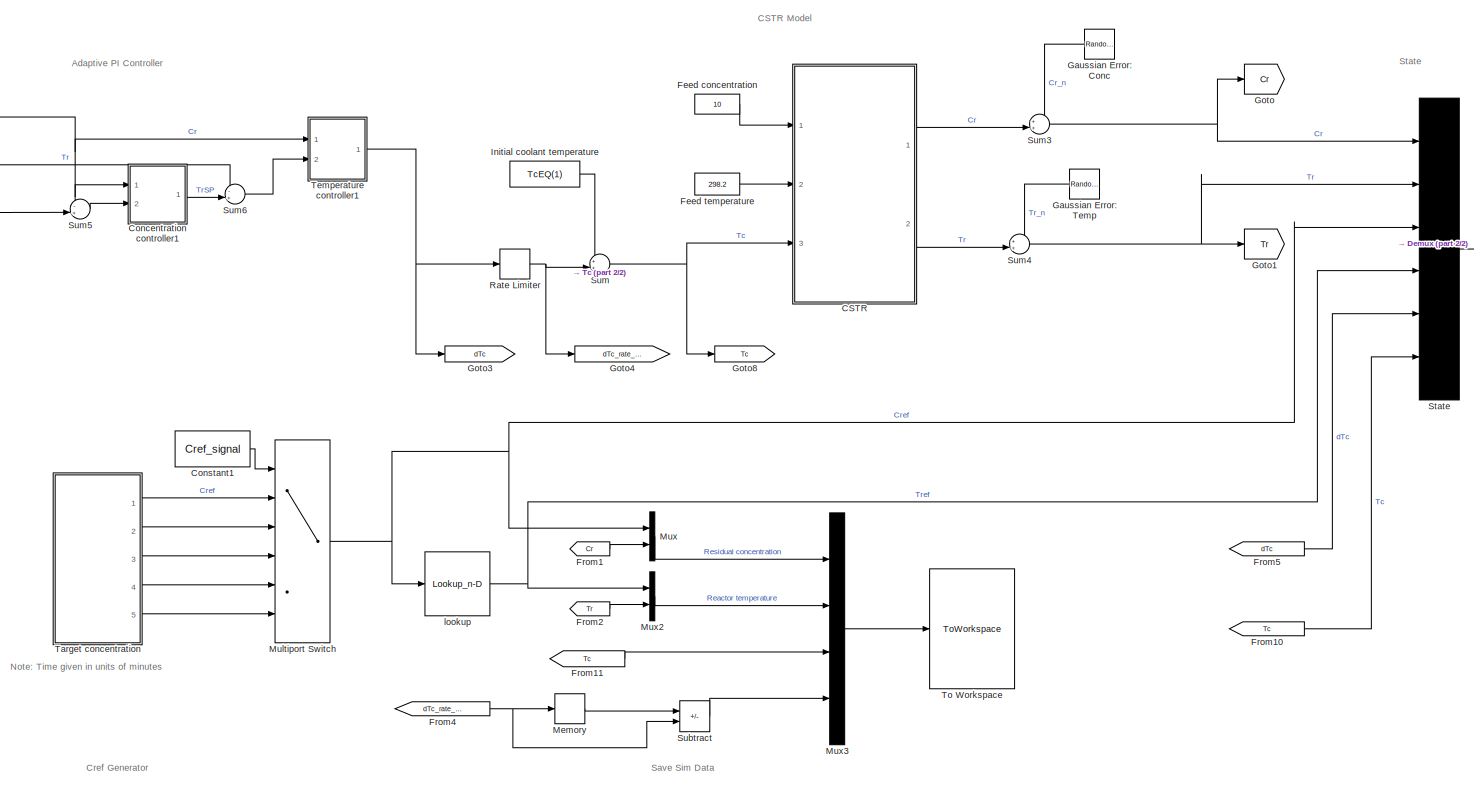
[diagram: root canvas - part 1/2, most of the canvas]
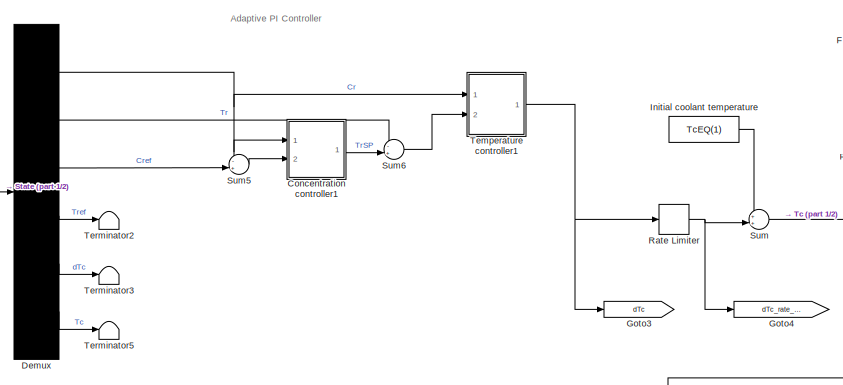
[diagram: root canvas - part 2/2, middle left region]
MODEL slx_334c2318e5c8
KIND model
CONFIG AbsTol = auto
CONFIG EnableMultiTasking = on
CONFIG FixedStep = Ts
CONFIG MaxStep = auto
CONFIG MinStep = auto
CONFIG PreLoadFcn = Ts = 0.5;\nload cstr_data.mat
CONFIG RelTol = 1e-3
CONFIG SampleTimeConstraint = Unconstrained
CONFIG SolverName = FixedStepAuto
CONFIG StartTime = 0
CONFIG StopTime = 45
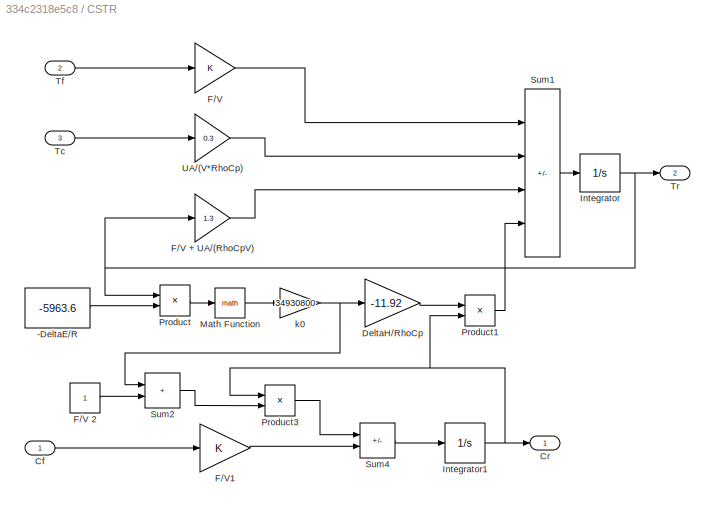
BLOCK [SubSystem] CSTR
  Ports = [3, 2]
  RequestExecContextInheritance = off
BLOCK [Constant] CSTR/-DeltaE//R
  SampleTime = 0
  Value = -5963.6
BLOCK [Inport] CSTR/Cf
BLOCK [Outport] CSTR/Cr
BLOCK [Gain] CSTR/DeltaH//RhoCp
  Gain = -11.92
  OutDataTypeStr = Inherit: Same as input
  ParamDataTypeStr = Inherit: Same as input
  SaturateOnIntegerOverflow = on
BLOCK [Gain] CSTR/F//V
  OutDataTypeStr = Inherit: Same as input
  ParamDataTypeStr = Inherit: Same as input
  SaturateOnIntegerOverflow = on
BLOCK [Gain] CSTR/F//V + UA//(RhoCpV)
  Gain = 1.3
  OutDataTypeStr = Inherit: Same as input
  ParamDataTypeStr = Inherit: Same as input
  SaturateOnIntegerOverflow = on
BLOCK [Constant] CSTR/F//V 2
  SampleTime = 0
BLOCK [Gain] CSTR/F//V1
  OutDataTypeStr = Inherit: Same as input
  ParamDataTypeStr = Inherit: Same as input
  SaturateOnIntegerOverflow = on
BLOCK [Integrator] CSTR/Integrator
  InitialCondition = TrEQ(1)
  LimitOutput = on
  LowerSaturationLimit = 0
  Ports = [1, 1]
BLOCK [Integrator] CSTR/Integrator1
  InitialCondition = CrEQ(1)
  LimitOutput = on
  LowerSaturationLimit = 0
  Ports = [1, 1]
BLOCK [Math] CSTR/Math Function
  Ports = [1, 1]
  SignedPower = on
BLOCK [Product] CSTR/Product
  InputSameDT = on
  Inputs = /*
  OutDataTypeStr = Inherit: Same as first input
  Ports = [2, 1]
  RndMeth = Zero
  SaturateOnIntegerOverflow = on
BLOCK [Product] CSTR/Product1
  InputSameDT = on
  OutDataTypeStr = Inherit: Same as first input
  Ports = [2, 1]
  RndMeth = Zero
  SaturateOnIntegerOverflow = on
BLOCK [Product] CSTR/Product3
  InputSameDT = on
  OutDataTypeStr = Inherit: Same as first input
  Ports = [2, 1]
  RndMeth = Zero
  SaturateOnIntegerOverflow = on
BLOCK [Sum] CSTR/Sum1
  IconShape = rectangular
  InputSameDT = on
  Inputs = ++--
  OutDataTypeStr = Inherit: Same as first input
  Ports = [4, 1]
  SaturateOnIntegerOverflow = on
BLOCK [Sum] CSTR/Sum2
  IconShape = rectangular
  InputSameDT = on
  OutDataTypeStr = Inherit: Same as first input
  Ports = [2, 1]
  SaturateOnIntegerOverflow = on
BLOCK [Sum] CSTR/Sum4
  IconShape = rectangular
  InputSameDT = on
  Inputs = -+
  OutDataTypeStr = Inherit: Same as first input
  Ports = [2, 1]
  SaturateOnIntegerOverflow = on
BLOCK [Inport] CSTR/Tc
  Port = 3
BLOCK [Inport] CSTR/Tf
  Port = 2
BLOCK [Outport] CSTR/Tr
  Port = 2
BLOCK [Gain] CSTR/UA//(V*RhoCp)
  Gain = 0.3
  OutDataTypeStr = Inherit: Same as input
  ParamDataTypeStr = Inherit: Same as input
  SaturateOnIntegerOverflow = on
BLOCK [Gain] CSTR/k0
  Gain = 34930800
  OutDataTypeStr = Inherit: Same as input
  ParamDataTypeStr = Inherit: Same as input
  SaturateOnIntegerOverflow = on
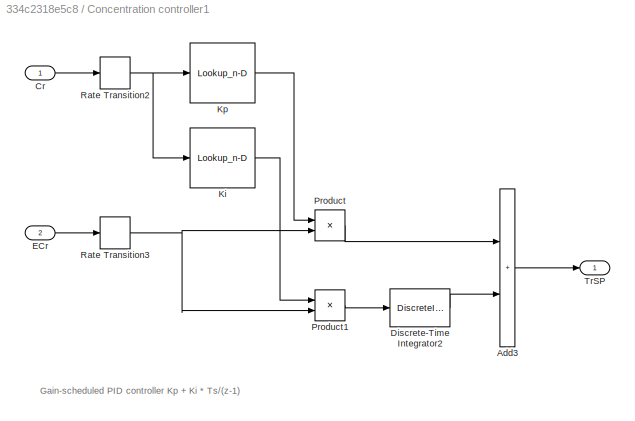
BLOCK [SubSystem] Concentration controller1
  Ports = [2, 1]
  RequestExecContextInheritance = off
BLOCK [Sum] Concentration controller1/Add3
  IconShape = rectangular
  Ports = [2, 1]
BLOCK [Inport] Concentration controller1/Cr
BLOCK [DiscreteIntegrator] Concentration controller1/Discrete-Time Integrator2
  ICPrevOutput = DiscIntNeverNeededParam
  ICPrevScaledInput = DiscIntNeverNeededParam
  InitialCondition = TrEQ(1)
  Ports = [1, 1]
  SampleTime = Ts
BLOCK [Inport] Concentration controller1/ECr
  Port = 2
BLOCK [Lookup_n-D] Concentration controller1/Ki
  BreakpointsForDimension1 = Cr_vec
  InputPortMap = u0
  InternalRulePriority = Speed
  LookupTableObject = ''
  NumberOfTableDimensions = 1
  Ports = [1, 1]
  RndMeth = Simplest
  Table = Ki_vec
BLOCK [Lookup_n-D] Concentration controller1/Kp
  BreakpointsForDimension1 = Cr_vec
  InputPortMap = u0
  InternalRulePriority = Speed
  LookupTableObject = ''
  NumberOfTableDimensions = 1
  Ports = [1, 1]
  RndMeth = Simplest
  Table = Kp_vec
BLOCK [Product] Concentration controller1/Product
  Ports = [2, 1]
BLOCK [Product] Concentration controller1/Product1
  Ports = [2, 1]
BLOCK [RateTransition] Concentration controller1/Rate Transition2
  OutPortSampleTime = Ts
BLOCK [RateTransition] Concentration controller1/Rate Transition3
  OutPortSampleTime = Ts
BLOCK [Outport] Concentration controller1/TrSP
BLOCK [Constant] Constant1
  Value = Cref_signal
BLOCK [Demux] Demux
  DisplayOption = none
  Outputs = 6
  Ports = [1, 6]
BLOCK [Constant] Feed concentration
  SampleTime = 0
  Value = 10
BLOCK [Constant] Feed temperature
  SampleTime = 0
  Value = 298.2
BLOCK [From] From1
  GotoTag = Cr
BLOCK [From] From10
  GotoTag = Tc
BLOCK [From] From11
  GotoTag = Tc
BLOCK [From] From2
  GotoTag = Tr
BLOCK [From] From4
  GotoTag = dTc_rate_limited
BLOCK [From] From5
  GotoTag = dTc
BLOCK [RandomNumber] Gaussian Error: Conc
  NameLocation = top
  SampleTime = Ts
  Seed = randi(100)
  Variance = conc_noise*conc_noise
BLOCK [RandomNumber] Gaussian Error: Temp
  NameLocation = top
  SampleTime = Ts
  Seed = randi(100)
  Variance = temp_noise*temp_noise
BLOCK [Goto] Goto
  GotoTag = Cr
BLOCK [Goto] Goto1
  GotoTag = Tr
BLOCK [Goto] Goto3
  GotoTag = dTc
BLOCK [Goto] Goto4
  GotoTag = dTc_rate_limited
BLOCK [Goto] Goto8
  GotoTag = Tc
BLOCK [Constant] Initial coolant temperature
  SampleTime = 0
  Value = TcEQ(1)
BLOCK [Memory] Memory
BLOCK [MultiPortSwitch] Multiport Switch
  InputSameDT = off
  Inputs = 5
  Ports = [6, 1]
  SaturateOnIntegerOverflow = off
BLOCK [Mux] Mux
  DisplayOption = bar
  Inputs = 2
  Ports = [2, 1]
BLOCK [Mux] Mux2
  DisplayOption = bar
  Inputs = 2
  Ports = [2, 1]
BLOCK [Mux] Mux3
  DisplayOption = bar
  Ports = [4, 1]
BLOCK [RateLimiter] Rate Limiter
  FallingSlewLimit = -10
  RisingSlewLimit = 10
  SampleTimeMode = inherited
BLOCK [Mux] State
  DisplayOption = signals
  Inputs = 6
  Ports = [6, 1]
BLOCK [Sum] Subtract
  IconShape = rectangular
  Inputs = +-
  Ports = [2, 1]
BLOCK [Sum] Sum
  Inputs = ++|
  Ports = [2, 1]
BLOCK [Sum] Sum3
  Inputs = ++|
  Ports = [2, 1]
BLOCK [Sum] Sum4
  Inputs = ++|
  Ports = [2, 1]
BLOCK [Sum] Sum5
  Inputs = -+|
  Ports = [2, 1]
BLOCK [Sum] Sum6
  Inputs = -+|
  Ports = [2, 1]
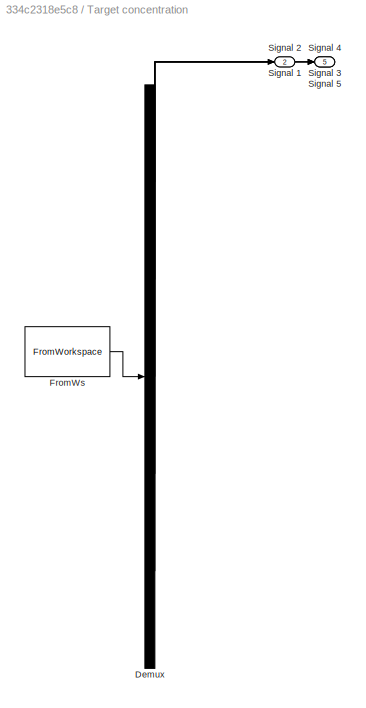
BLOCK [SubSystem] Target concentration
  ClipboardFcn = sigbuilder_block('clipboard');
  CloseFcn = sigbuilder_block('close');
  ContinueFcn = sigbuilder_block('continue');
  CopyFcn = sigbuilder_block('copy');
  DeleteFcn = sigbuilder_block('delete');
  LoadFcn = sigbuilder_block('load');
  MaskHideContents = on
  ModelCloseFcn = sigbuilder_block('modelClose');
  NameChangeFcn = sigbuilder_block('namechange');
  OpenFcn = sigbuilder_block('open',[661 266 1131 668 ]);
  PauseFcn = sigbuilder_block('pause');
  Ports = [0, 5]
  PreSaveFcn = sigbuilder_block('preSave');
  RequestExecContextInheritance = off
  StartFcn = sigbuilder_block('start');
  StopFcn = sigbuilder_block('stop');
  Tag = STV Subsys
BLOCK [Demux] Target concentration/Demux
  DisplayOption = none
  Outputs = 5
  Ports = [1, 5]
  Tag = STV Demux
BLOCK [FromWorkspace] Target concentration/FromWs
  Tag = STV FromWs
  VariableName = tuvar
BLOCK [Outport] Target concentration/Signal 1
  Tag = STV Outport
BLOCK [Outport] Target concentration/Signal 2
  Port = 2
  Tag = STV Outport
BLOCK [Outport] Target concentration/Signal 3
  Port = 3
  Tag = STV Outport
BLOCK [Outport] Target concentration/Signal 4
  Port = 4
  Tag = STV Outport
BLOCK [Outport] Target concentration/Signal 5
  Port = 5
  Tag = STV Outport
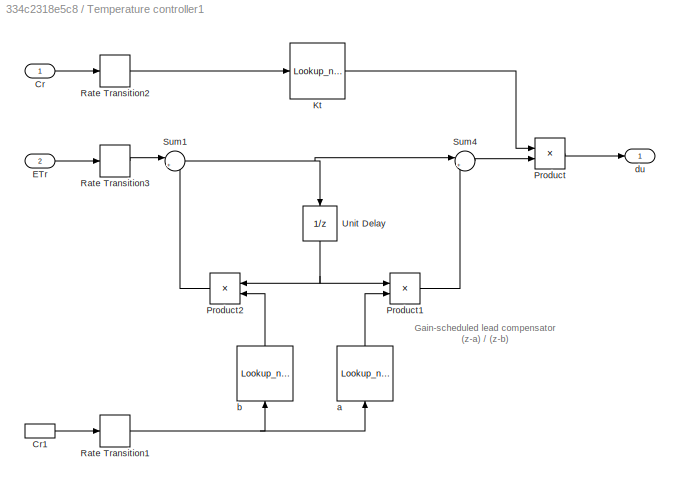
BLOCK [SubSystem] Temperature controller1
  Ports = [2, 1]
  RequestExecContextInheritance = off
BLOCK [Inport] Temperature controller1/Cr
BLOCK [InportShadow] Temperature controller1/Cr1
BLOCK [Inport] Temperature controller1/ETr
  Port = 2
BLOCK [Lookup_n-D] Temperature controller1/Kt
  BreakpointsForDimension1 = Cr_vec
  InputPortMap = u0
  InternalRulePriority = Speed
  LookupTableObject = ''
  NumberOfTableDimensions = 1
  Ports = [1, 1]
  RndMeth = Simplest
  Table = Kt_vec
BLOCK [Product] Temperature controller1/Product
  Ports = [2, 1]
BLOCK [Product] Temperature controller1/Product1
  Ports = [2, 1]
BLOCK [Product] Temperature controller1/Product2
  Ports = [2, 1]
BLOCK [RateTransition] Temperature controller1/Rate Transition1
  OutPortSampleTime = Ts
BLOCK [RateTransition] Temperature controller1/Rate Transition2
  OutPortSampleTime = Ts
BLOCK [RateTransition] Temperature controller1/Rate Transition3
  OutPortSampleTime = Ts
BLOCK [Sum] Temperature controller1/Sum1
  Inputs = |++
  Ports = [2, 1]
BLOCK [Sum] Temperature controller1/Sum4
  Inputs = |+-
  Ports = [2, 1]
BLOCK [UnitDelay] Temperature controller1/Unit Delay
  HasFrameUpgradeWarning = on
  NameLocation = left
  SampleTime = Ts
BLOCK [Lookup_n-D] Temperature controller1/a
  BreakpointsForDimension1 = Cr_vec
  InputPortMap = u0
  InternalRulePriority = Speed
  LookupTableObject = ''
  NameLocation = right
  NumberOfTableDimensions = 1
  Ports = [1, 1]
  RndMeth = Simplest
  Table = a_vec
BLOCK [Lookup_n-D] Temperature controller1/b
  BreakpointsForDimension1 = Cr_vec
  InputPortMap = u0
  InternalRulePriority = Speed
  LookupTableObject = ''
  NameLocation = right
  NumberOfTableDimensions = 1
  Ports = [1, 1]
  RndMeth = Simplest
  Table = b_vec
BLOCK [Outport] Temperature controller1/du
BLOCK [Terminator] Terminator2
BLOCK [Terminator] Terminator3
BLOCK [Terminator] Terminator5
BLOCK [ToWorkspace] To Workspace
  FixptAsFi = on
  MaxDataPoints = inf
  Ports = [1]
  SampleTime = -1
  VariableName = simout
BLOCK [Lookup_n-D] lookup
  BreakpointsForDimension1 = flipud(CrEQ)
  InputPortMap = u0
  LookupTableObject = ''
  NumberOfTableDimensions = 1
  Ports = [1, 1]
  RndMeth = Simplest
  Table = flipud(TrEQ)
ANNOTATION (root): Note: Time given in units of minutes
ANNOTATION (root): Adaptive PI Controller
ANNOTATION (root): CSTR Model
ANNOTATION (root): Cref Generator
ANNOTATION (root): State
ANNOTATION (root): Save Sim Data
ANNOTATION Concentration controller1: Gain-scheduled PID controller Kp + Ki * Ts/(z-1)
ANNOTATION Temperature controller1: Gain-scheduled lead compensator (z-a) / (z-b)
LINE CSTR/-DeltaE//R:1 -> CSTR/Product:2
LINE CSTR/Cf:1 -> CSTR/F//V1:1
LINE CSTR/DeltaH//RhoCp:1 -> CSTR/Product1:1
LINE CSTR/F//V + UA//(RhoCpV):1 -> CSTR/Sum1:3
LINE CSTR/F//V 2:1 -> CSTR/Sum2:2
LINE CSTR/F//V1:1 -> CSTR/Sum4:2
LINE CSTR/F//V:1 -> CSTR/Sum1:1
NET CSTR/Integrator1:1 -> CSTR/Cr:1, CSTR/Product1:2, CSTR/Product3:1
NET CSTR/Integrator:1 -> CSTR/F//V + UA//(RhoCpV):1, CSTR/Product:1, CSTR/Tr:1
LINE CSTR/Math Function:1 -> CSTR/k0:1
LINE CSTR/Product1:1 -> CSTR/Sum1:4
LINE CSTR/Product3:1 -> CSTR/Sum4:1
LINE CSTR/Product:1 -> CSTR/Math Function:1
LINE CSTR/Sum1:1 -> CSTR/Integrator:1
LINE CSTR/Sum2:1 -> CSTR/Product3:2
LINE CSTR/Sum4:1 -> CSTR/Integrator1:1
LINE CSTR/Tc:1 -> CSTR/UA//(V*RhoCp):1
LINE CSTR/Tf:1 -> CSTR/F//V:1
LINE CSTR/UA//(V*RhoCp):1 -> CSTR/Sum1:2
NET CSTR/k0:1 -> CSTR/DeltaH//RhoCp:1, CSTR/Sum2:1
LINE CSTR:1 -> Sum3:2
LINE CSTR:2 -> Sum4:2
LINE Concentration controller1/Add3:1 -> Concentration controller1/TrSP:1
LINE Concentration controller1/Cr:1 -> Concentration controller1/Rate Transition2:1
LINE Concentration controller1/Discrete-Time Integrator2:1 -> Concentration controller1/Add3:2
LINE Concentration controller1/ECr:1 -> Concentration controller1/Rate Transition3:1
LINE Concentration controller1/Ki:1 -> Concentration controller1/Product1:1
LINE Concentration controller1/Kp:1 -> Concentration controller1/Product:1
LINE Concentration controller1/Product1:1 -> Concentration controller1/Discrete-Time Integrator2:1
LINE Concentration controller1/Product:1 -> Concentration controller1/Add3:1
NET Concentration controller1/Rate Transition2:1 -> Concentration controller1/Ki:1, Concentration controller1/Kp:1
NET Concentration controller1/Rate Transition3:1 -> Concentration controller1/Product1:2, Concentration controller1/Product:2
LINE Concentration controller1:1 -> Sum6:2
LINE Constant1:1 -> Multiport Switch:1
NET Demux:1 -> Concentration controller1:1, Sum5:1, Temperature controller1:1
LINE Demux:2 -> Sum6:1
LINE Demux:3 -> Sum5:2
LINE Demux:4 -> Terminator2:1
LINE Demux:5 -> Terminator3:1
LINE Demux:6 -> Terminator5:1
LINE Feed concentration:1 -> CSTR:1
LINE Feed temperature:1 -> CSTR:2
LINE From10:1 -> State:6
LINE From11:1 -> Mux3:3
LINE From1:1 -> Mux:2
LINE From2:1 -> Mux2:2
NET From4:1 -> Memory:1, Subtract:2
LINE From5:1 -> State:5
LINE Gaussian Error: Conc:1 -> Sum3:1
LINE Gaussian Error: Temp:1 -> Sum4:1
LINE Initial coolant temperature:1 -> Sum:1
LINE Memory:1 -> Subtract:1
NET Multiport Switch:1 -> Mux:1, State:3, lookup:1
LINE Mux2:1 -> Mux3:2
LINE Mux3:1 -> To Workspace:1
LINE Mux:1 -> Mux3:1
NET Rate Limiter:1 -> Goto4:1, Sum:2
LINE State:1 -> Demux:1
LINE Subtract:1 -> Mux3:4
NET Sum3:1 -> Goto:1, State:1
NET Sum4:1 -> Goto1:1, State:2
LINE Sum5:1 -> Concentration controller1:2
LINE Sum6:1 -> Temperature controller1:2
NET Sum:1 -> CSTR:3, Goto8:1
LINE Target concentration:1 -> Multiport Switch:2
LINE Target concentration:2 -> Multiport Switch:3
LINE Target concentration:3 -> Multiport Switch:4
LINE Target concentration:4 -> Multiport Switch:5
LINE Target concentration:5 -> Multiport Switch:6
LINE Temperature controller1/Cr1:1 -> Temperature controller1/Rate Transition1:1
LINE Temperature controller1/Cr:1 -> Temperature controller1/Rate Transition2:1
LINE Temperature controller1/ETr:1 -> Temperature controller1/Rate Transition3:1
LINE Temperature controller1/Kt:1 -> Temperature controller1/Product:1
LINE Temperature controller1/Product1:1 -> Temperature controller1/Sum4:2
LINE Temperature controller1/Product2:1 -> Temperature controller1/Sum1:2
LINE Temperature controller1/Product:1 -> Temperature controller1/du:1
NET Temperature controller1/Rate Transition1:1 -> Temperature controller1/a:1, Temperature controller1/b:1
LINE Temperature controller1/Rate Transition2:1 -> Temperature controller1/Kt:1
LINE Temperature controller1/Rate Transition3:1 -> Temperature controller1/Sum1:1
NET Temperature controller1/Sum1:1 -> Temperature controller1/Sum4:1, Temperature controller1/Unit Delay:1
LINE Temperature controller1/Sum4:1 -> Temperature controller1/Product:2
NET Temperature controller1/Unit Delay:1 -> Temperature controller1/Product1:1, Temperature controller1/Product2:1
LINE Temperature controller1/a:1 -> Temperature controller1/Product1:2
LINE Temperature controller1/b:1 -> Temperature controller1/Product2:2
NET Temperature controller1:1 -> Goto3:1, Rate Limiter:1
NET lookup:1 -> Mux2:1, State:4
note: NET lines group one-source signal fan-out (src -> all destinations, sorted); 1:1 wires keep LINE
